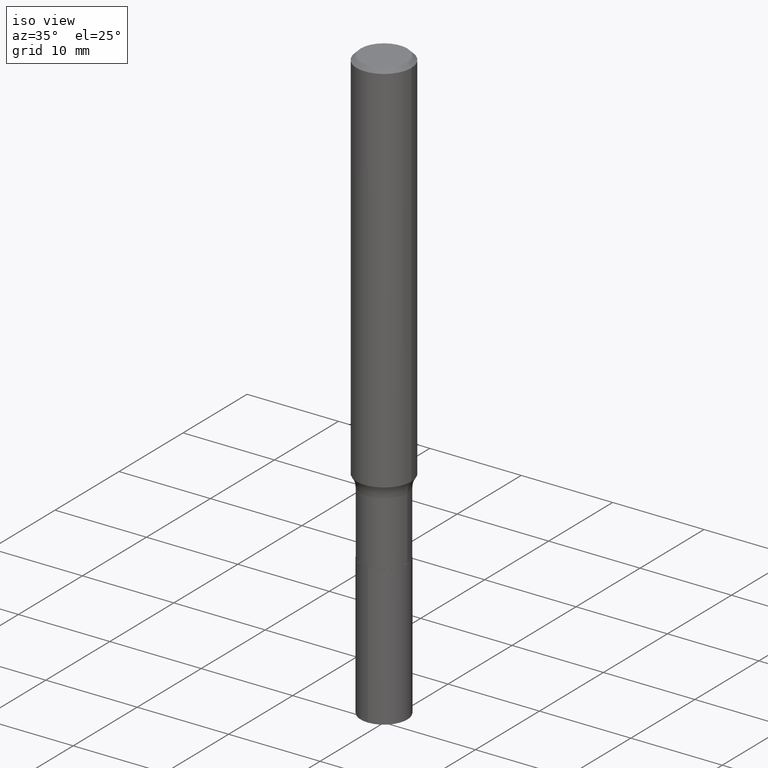
[diagram: clean part render]
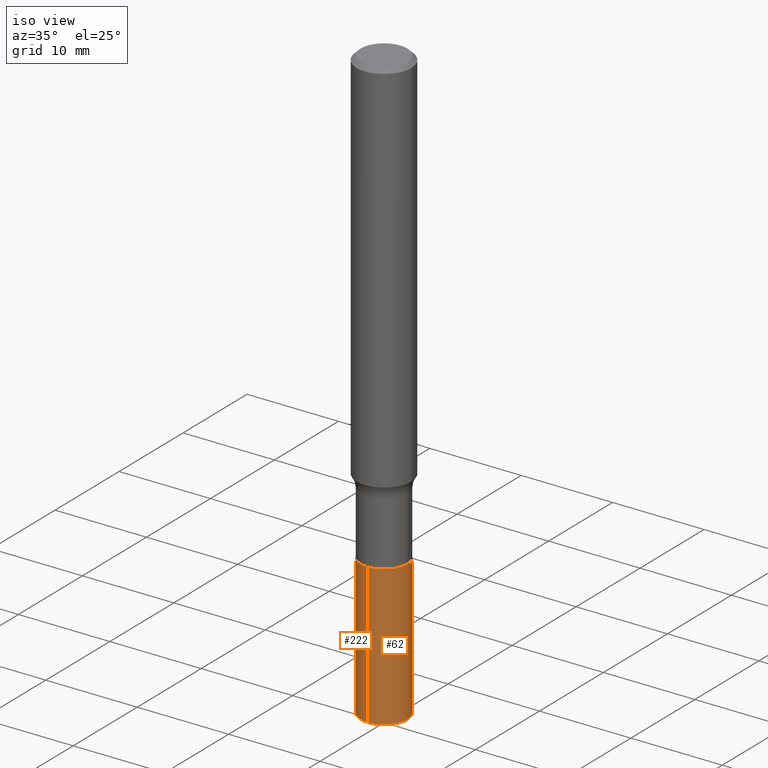
[diagram: same view with one multi-face feature highlighted, each face labeled with its STEP entity id]
A machine part, iso view. The highlighted faces form ONE feature: a constant-radius fillet chain: 2 tangent blend faces with common blend radius 2.5502 mm. The faces share edges in the B-rep.
Their STEP definitions:
[1] entity #62 (Cylinder):
#18 = CARTESIAN_POINT ( 'NONE',  ( 6.258336242776719159E-29, -8.934853672551297411E-15, -2.559100000000000374 ) ) ;
#19 = CARTESIAN_POINT ( 'NONE',  ( -7.010894528396533507E-16, -0.1004000000000068171, -1.953099999999999614 ) ) ;
#25 = AXIS2_PLACEMENT_3D ( 'NONE', #458, #456, #209 ) ;
#39 = CIRCLE ( 'NONE', #258, 0.1004000000000000031 ) ;
#42 = EDGE_CURVE ( 'NONE', #216, #148, #342, .T. ) ;
#44 = EDGE_CURVE ( 'NONE', #445, #124, #39, .T. ) ;
#55 = ORIENTED_EDGE ( 'NONE', *, *, #396, .F. ) ;
#61 = DIRECTION ( 'NONE',  ( -2.445694913228593758E-29, 3.491157540687701094E-15, 1.000000000000000000 ) ) ;
#62 = ADVANCED_FACE ( 'NONE', ( #340 ), #210, .T. ) ;
#89 = ORIENTED_EDGE ( 'NONE', *, *, #418, .T. ) ;
#92 = CARTESIAN_POINT ( 'NONE',  ( 7.133849067031883349E-16, 0.1003999999999931891, -1.953100000000000280 ) ) ;
#124 = VERTEX_POINT ( 'NONE', #279 ) ;
#144 = CARTESIAN_POINT ( 'NONE',  ( -7.010894528396385595E-16, -0.1004000000000089404, -2.559099999999999930 ) ) ;
#146 = ORIENTED_EDGE ( 'NONE', *, *, #44, .F. ) ;
#148 = VERTEX_POINT ( 'NONE', #284 ) ;
#152 = DIRECTION ( 'NONE',  ( -2.445694913228594039E-29, 3.491157540687701094E-15, 1.000000000000000000 ) ) ;
#202 = CARTESIAN_POINT ( 'NONE',  ( 4.776245125360189939E-29, -6.819212202894547031E-15, -1.953100000000000058 ) ) ;
#209 = DIRECTION ( 'NONE',  ( -6.982962677686266711E-15, -1.000000000000000000, 2.720964137115799877E-15 ) ) ;
#210 = CYLINDRICAL_SURFACE ( 'NONE', #25, 0.1004000000000000031 ) ;
#216 = VERTEX_POINT ( 'NONE', #144 ) ;
#229 = ORIENTED_EDGE ( 'NONE', *, *, #42, .T. ) ;
#258 = AXIS2_PLACEMENT_3D ( 'NONE', #202, #335, #362 ) ;
#279 = CARTESIAN_POINT ( 'NONE',  ( 7.133849067032031261E-16, 0.1003999999999931753, -1.953100000000000280 ) ) ;
#284 = CARTESIAN_POINT ( 'NONE',  ( 7.133849067031957305E-16, 0.1003999999999910797, -2.559100000000001263 ) ) ;
#293 = LINE ( 'NONE', #92, #364 ) ;
#335 = DIRECTION ( 'NONE',  ( -2.445694913228593758E-29, 3.491157540687701094E-15, 1.000000000000000000 ) ) ;
#340 = FACE_OUTER_BOUND ( 'NONE', #420, .T. ) ;
#342 = CIRCLE ( 'NONE', #437, 0.1004000000000000031 ) ;
#362 = DIRECTION ( 'NONE',  ( -6.982962677686266711E-15, -1.000000000000000000, 2.720964137115799877E-15 ) ) ;
#364 = VECTOR ( 'NONE', #464, 39.37007874015748143 ) ;
#365 = DIRECTION ( 'NONE',  ( -6.982962677686266711E-15, -1.000000000000000000, 5.441928274231599754E-15 ) ) ;
#393 = CARTESIAN_POINT ( 'NONE',  ( -7.010894528396533507E-16, -0.1004000000000068171, -1.953099999999999614 ) ) ;
#396 = EDGE_CURVE ( 'NONE', #216, #445, #429, .T. ) ;
#418 = EDGE_CURVE ( 'NONE', #148, #124, #293, .T. ) ;
#420 = EDGE_LOOP ( 'NONE', ( #229, #89, #146, #55 ) ) ;
#429 = LINE ( 'NONE', #393, #463 ) ;
#437 = AXIS2_PLACEMENT_3D ( 'NONE', #18, #61, #365 ) ;
#445 = VERTEX_POINT ( 'NONE', #19 ) ;
#456 = DIRECTION ( 'NONE',  ( -2.445694913228593758E-29, 3.491157540687701094E-15, 1.000000000000000000 ) ) ;
#458 = CARTESIAN_POINT ( 'NONE',  ( 4.776245125360189939E-29, -6.819212202894547031E-15, -1.953100000000000058 ) ) ;
#463 = VECTOR ( 'NONE', #152, 39.37007874015748143 ) ;
#464 = DIRECTION ( 'NONE',  ( -2.445694913228594039E-29, 3.491157540687701094E-15, 1.000000000000000000 ) ) ;
[2] entity #222 (Cylinder):
#19 = CARTESIAN_POINT ( 'NONE',  ( -7.010894528396533507E-16, -0.1004000000000068171, -1.953099999999999614 ) ) ;
#22 = CYLINDRICAL_SURFACE ( 'NONE', #275, 0.1004000000000000031 ) ;
#23 = DIRECTION ( 'NONE',  ( -6.982962677686266711E-15, -1.000000000000000000, 2.720964137115799877E-15 ) ) ;
#43 = ORIENTED_EDGE ( 'NONE', *, *, #396, .T. ) ;
#58 = AXIS2_PLACEMENT_3D ( 'NONE', #66, #306, #102 ) ;
#66 = CARTESIAN_POINT ( 'NONE',  ( 6.258336242776719159E-29, -8.934853672551297411E-15, -2.559100000000000374 ) ) ;
#74 = CARTESIAN_POINT ( 'NONE',  ( 4.776245125360189939E-29, -6.819212202894547031E-15, -1.953100000000000058 ) ) ;
#78 = DIRECTION ( 'NONE',  ( -6.982962677686266711E-15, -1.000000000000000000, 2.720964137115799877E-15 ) ) ;
#92 = CARTESIAN_POINT ( 'NONE',  ( 7.133849067031883349E-16, 0.1003999999999931891, -1.953100000000000280 ) ) ;
#102 = DIRECTION ( 'NONE',  ( -6.982962677686266711E-15, -1.000000000000000000, 5.441928274231599754E-15 ) ) ;
#116 = EDGE_CURVE ( 'NONE', #148, #216, #214, .T. ) ;
#120 = CIRCLE ( 'NONE', #343, 0.1004000000000000031 ) ;
#124 = VERTEX_POINT ( 'NONE', #279 ) ;
#144 = CARTESIAN_POINT ( 'NONE',  ( -7.010894528396385595E-16, -0.1004000000000089404, -2.559099999999999930 ) ) ;
#148 = VERTEX_POINT ( 'NONE', #284 ) ;
#152 = DIRECTION ( 'NONE',  ( -2.445694913228594039E-29, 3.491157540687701094E-15, 1.000000000000000000 ) ) ;
#185 = ORIENTED_EDGE ( 'NONE', *, *, #460, .F. ) ;
#214 = CIRCLE ( 'NONE', #58, 0.1004000000000000031 ) ;
#216 = VERTEX_POINT ( 'NONE', #144 ) ;
#222 = ADVANCED_FACE ( 'NONE', ( #286 ), #22, .T. ) ;
#257 = DIRECTION ( 'NONE',  ( -2.445694913228593758E-29, 3.491157540687701094E-15, 1.000000000000000000 ) ) ;
#275 = AXIS2_PLACEMENT_3D ( 'NONE', #74, #257, #78 ) ;
#279 = CARTESIAN_POINT ( 'NONE',  ( 7.133849067032031261E-16, 0.1003999999999931753, -1.953100000000000280 ) ) ;
#284 = CARTESIAN_POINT ( 'NONE',  ( 7.133849067031957305E-16, 0.1003999999999910797, -2.559100000000001263 ) ) ;
#286 = FACE_OUTER_BOUND ( 'NONE', #397, .T. ) ;
#287 = ORIENTED_EDGE ( 'NONE', *, *, #418, .F. ) ;
#293 = LINE ( 'NONE', #92, #364 ) ;
#295 = CARTESIAN_POINT ( 'NONE',  ( 4.776245125360189939E-29, -6.819212202894547031E-15, -1.953100000000000058 ) ) ;
#298 = DIRECTION ( 'NONE',  ( -2.445694913228593758E-29, 3.491157540687701094E-15, 1.000000000000000000 ) ) ;
#306 = DIRECTION ( 'NONE',  ( -2.445694913228593758E-29, 3.491157540687701094E-15, 1.000000000000000000 ) ) ;
#323 = ORIENTED_EDGE ( 'NONE', *, *, #116, .T. ) ;
#343 = AXIS2_PLACEMENT_3D ( 'NONE', #295, #298, #23 ) ;
#364 = VECTOR ( 'NONE', #464, 39.37007874015748143 ) ;
#393 = CARTESIAN_POINT ( 'NONE',  ( -7.010894528396533507E-16, -0.1004000000000068171, -1.953099999999999614 ) ) ;
#396 = EDGE_CURVE ( 'NONE', #216, #445, #429, .T. ) ;
#397 = EDGE_LOOP ( 'NONE', ( #287, #323, #43, #185 ) ) ;
#418 = EDGE_CURVE ( 'NONE', #148, #124, #293, .T. ) ;
#429 = LINE ( 'NONE', #393, #463 ) ;
#445 = VERTEX_POINT ( 'NONE', #19 ) ;
#460 = EDGE_CURVE ( 'NONE', #124, #445, #120, .T. ) ;
#463 = VECTOR ( 'NONE', #152, 39.37007874015748143 ) ;
#464 = DIRECTION ( 'NONE',  ( -2.445694913228594039E-29, 3.491157540687701094E-15, 1.000000000000000000 ) ) ;